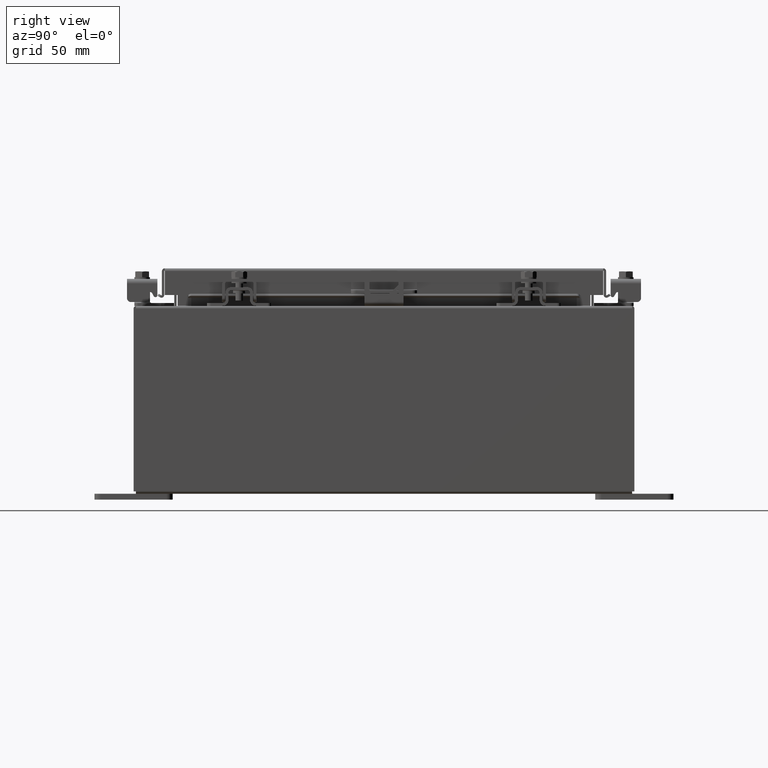
[diagram: clean part render]
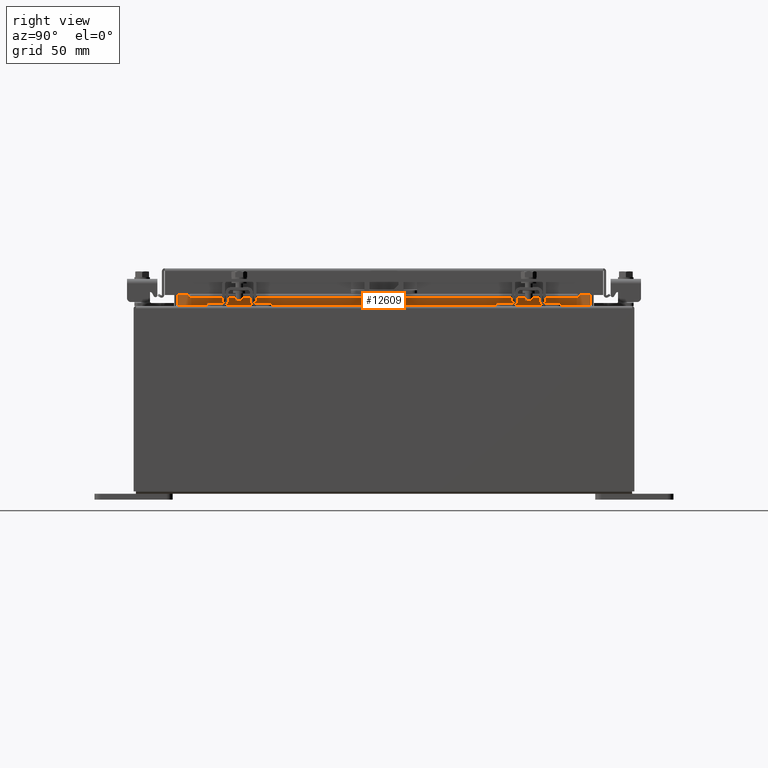
[diagram: same view with one face highlighted and labeled with its STEP entity id]
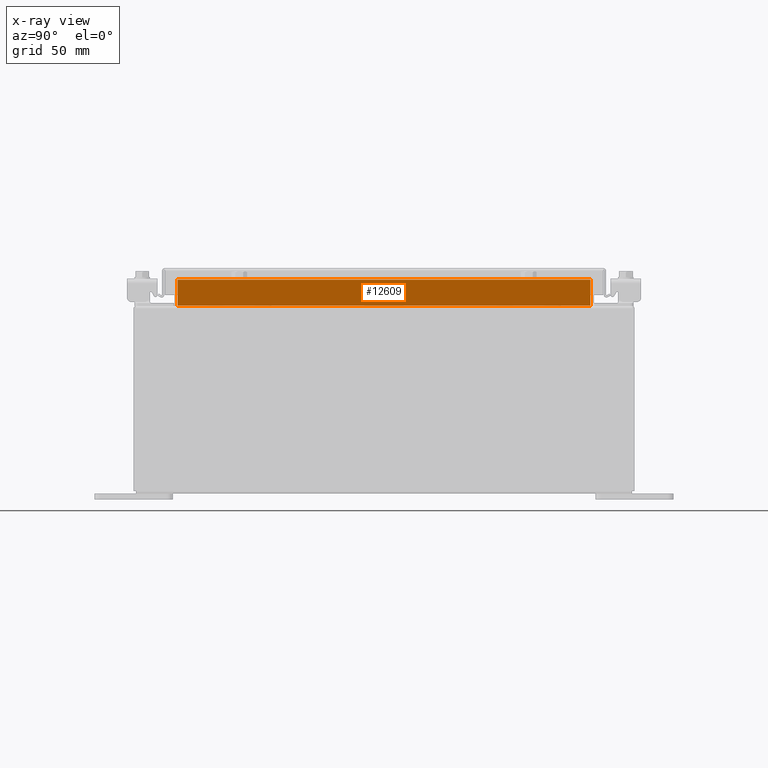
[diagram: x-ray of the same camera — body ghosted, the highlighted face saturated]
A machine part, right view. The second image highlights one B-rep face of the part: STEP entity #12609.
The next image is the same camera in x-ray: the body ghosted, the highlighted face saturated — about 0% of this face is hidden behind the body in this view.
In plain terms, the highlighted planar face has unit normal (1, 0, -0).
Its self-contained STEP definition (entity closure, byte-faithful):
#690 = LINE ( 'NONE', #21474, #5390 ) ;
#2037 = EDGE_CURVE ( 'NONE', #4201, #10208, #13961, .T. ) ;
#4201 = VERTEX_POINT ( 'NONE', #4244 ) ;
#4244 = CARTESIAN_POINT ( 'NONE',  ( 4.699700000000020400, 6.593750000000000000, 5.938300000000010600 ) ) ;
#5390 = VECTOR ( 'NONE', #23490, 39.37007874015748100 ) ;
#6168 = EDGE_LOOP ( 'NONE', ( #17599, #16270, #13383, #21195 ) ) ;
#6700 = FACE_OUTER_BOUND ( 'NONE', #6168, .T. ) ;
#7443 = VECTOR ( 'NONE', #24494, 39.37007874015748100 ) ;
#8175 = DIRECTION ( 'NONE',  ( 3.542869979895298400E-015, -0.0000000000000000000, 1.000000000000000000 ) ) ;
#8280 = CARTESIAN_POINT ( 'NONE',  ( 4.699700000000023100, -6.593750000000000900, 6.762900000000009900 ) ) ;
#8761 = DIRECTION ( 'NONE',  ( 1.000000000000000000, 0.0000000000000000000, -3.542869979895294000E-015 ) ) ;
#9165 = EDGE_CURVE ( 'NONE', #10208, #22166, #15669, .T. ) ;
#10208 = VERTEX_POINT ( 'NONE', #17187 ) ;
#12154 = LINE ( 'NONE', #20560, #7443 ) ;
#12433 = CARTESIAN_POINT ( 'NONE',  ( 4.699700000000024000, 6.593750000000000000, 6.762900000000009900 ) ) ;
#12609 = ADVANCED_FACE ( 'NONE', ( #6700 ), #12716, .T. ) ;
#12716 = PLANE ( 'NONE',  #17600 ) ;
#12722 = VECTOR ( 'NONE', #19078, 39.37007874015748100 ) ;
#13383 = ORIENTED_EDGE ( 'NONE', *, *, #9165, .F. ) ;
#13479 = EDGE_CURVE ( 'NONE', #21603, #4201, #690, .T. ) ;
#13961 = LINE ( 'NONE', #17050, #12722 ) ;
#14156 = CARTESIAN_POINT ( 'NONE',  ( 4.699700000000024000, -6.593750000000000900, 6.850600000000010700 ) ) ;
#15045 = VECTOR ( 'NONE', #8175, 39.37007874015748100 ) ;
#15669 = LINE ( 'NONE', #14156, #15045 ) ;
#16270 = ORIENTED_EDGE ( 'NONE', *, *, #17425, .F. ) ;
#17050 = CARTESIAN_POINT ( 'NONE',  ( 4.699700000000019500, 6.593750000000000000, 5.938300000000010600 ) ) ;
#17187 = CARTESIAN_POINT ( 'NONE',  ( 4.699700000000020400, -6.593750000000000900, 5.938300000000010600 ) ) ;
#17425 = EDGE_CURVE ( 'NONE', #22166, #21603, #12154, .T. ) ;
#17599 = ORIENTED_EDGE ( 'NONE', *, *, #13479, .F. ) ;
#17600 = AXIS2_PLACEMENT_3D ( 'NONE', #20735, #8761, #22844 ) ;
#19078 = DIRECTION ( 'NONE',  ( 8.286174009218617400E-017, -1.000000000000000000, 8.286174009218617400E-017 ) ) ;
#20560 = CARTESIAN_POINT ( 'NONE',  ( 4.699700000000024000, -6.593750000000002700, 6.762900000000009900 ) ) ;
#20735 = CARTESIAN_POINT ( 'NONE',  ( 4.699700000000000000, 0.0000000000000000000, -1.665042604451391200E-014 ) ) ;
#21195 = ORIENTED_EDGE ( 'NONE', *, *, #2037, .F. ) ;
#21474 = CARTESIAN_POINT ( 'NONE',  ( 4.699700000000020400, 6.593750000000000000, 5.925300000000009800 ) ) ;
#21603 = VERTEX_POINT ( 'NONE', #12433 ) ;
#22166 = VERTEX_POINT ( 'NONE', #8280 ) ;
#22844 = DIRECTION ( 'NONE',  ( -3.542869979895294000E-015, 0.0000000000000000000, -1.000000000000000000 ) ) ;
#23490 = DIRECTION ( 'NONE',  ( -3.542869979895294000E-015, -0.0000000000000000000, -1.000000000000000000 ) ) ;
#24494 = DIRECTION ( 'NONE',  ( 0.0000000000000000000, 1.000000000000000000, 0.0000000000000000000 ) ) ;